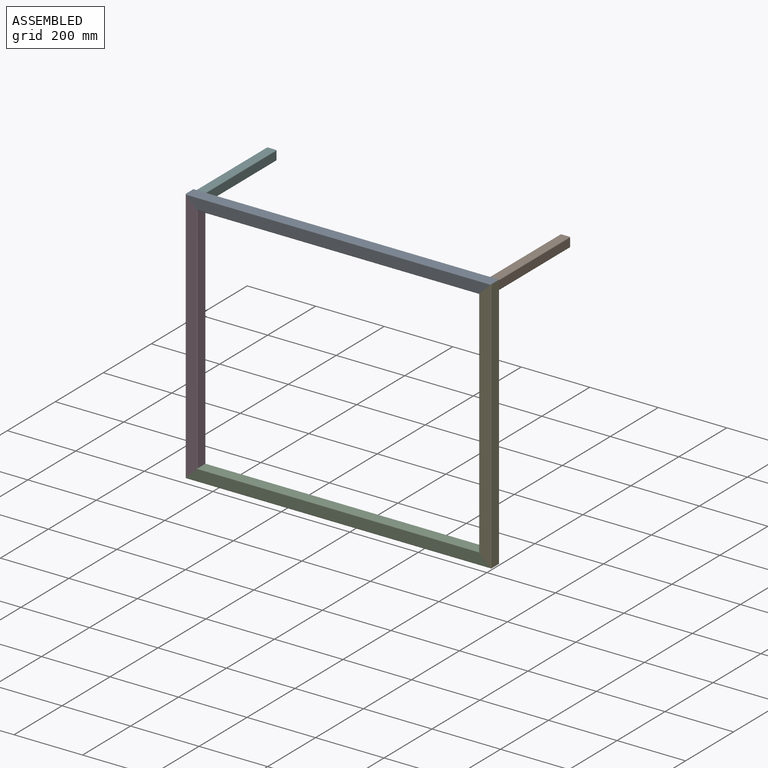
[diagram: assembled view]
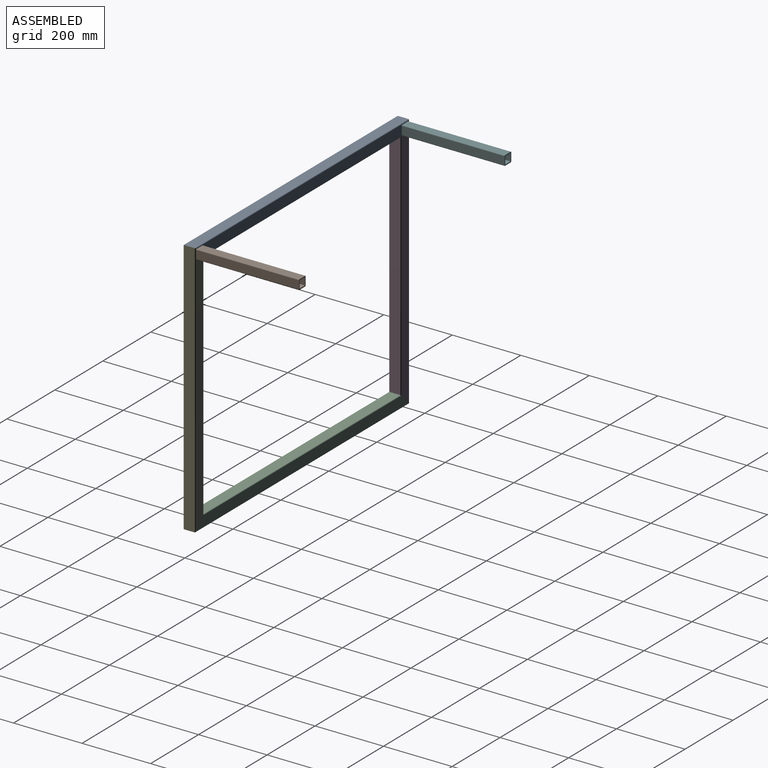
[diagram: assembled view, second angle]
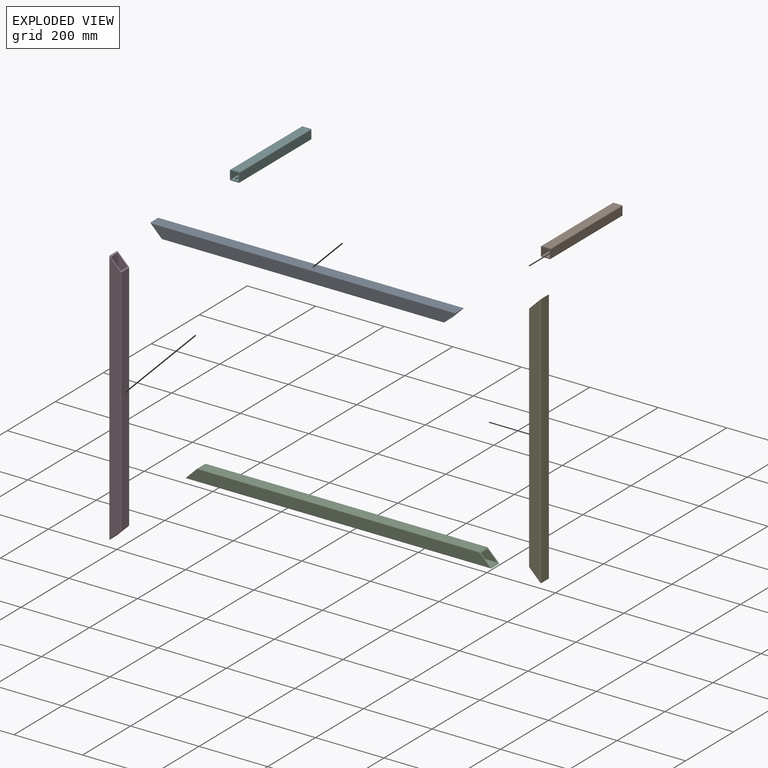
[diagram: exploded view]
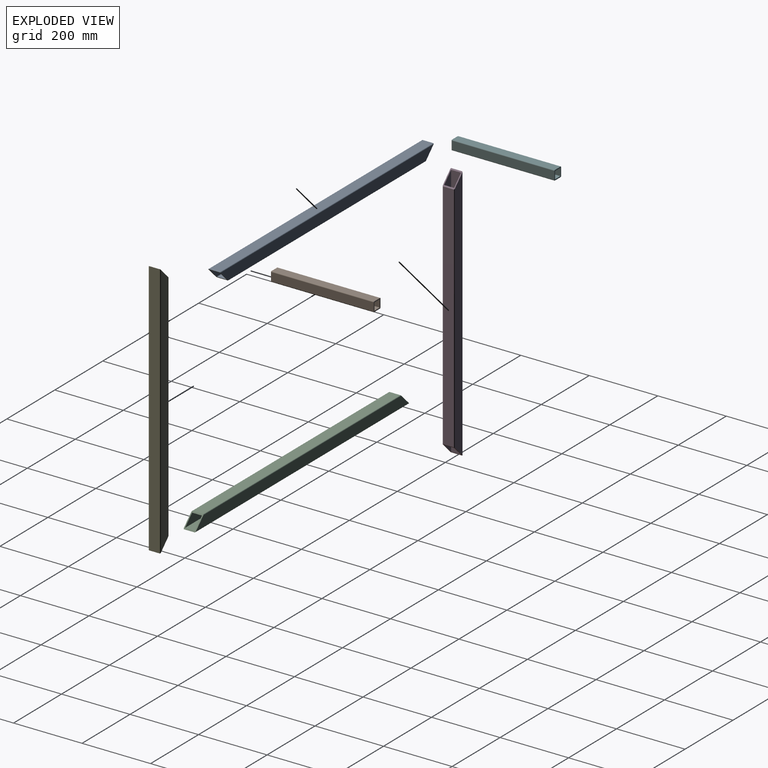
[diagram: exploded view, second angle]
ASSEMBLY  parts=6 mates=5
PART A: 14 faces, bbox 892x35x35 mm
  f0: plane 888x31mm, normal (0,-1,0), area 26567mm2, adj f8,f9,f12,f13
  f1: plane 822x31mm, normal (0,0,-1), area 25482mm2, adj f8,f9,f10,f13
  f2: plane 888x31mm, normal (0,1,0), area 26567mm2, adj f8,f9,f10,f11
  f3: plane 892x31mm, normal (0,0,1), area 27652mm2, adj f8,f9,f11,f12
  f4: plane 886x29mm, normal (0,1,0), area 24853mm2, adj f5,f7,f8,f9
  f5: plane 886x29mm, normal (0,0,-1), area 25694mm2, adj f4,f6,f8,f9
  f6: plane 886x29mm, normal (0,-1,0), area 24853mm2, adj f5,f7,f8,f9
  f7: plane 828x29mm, normal (0,0,1), area 24012mm2, adj f4,f6,f8,f9
  f8: plane 35x35mm, normal (0.71,0,-0.71), area 538.2mm2, adj f0,f1,f2,f3,f4,f5,f6,f7
  f9: plane 35x35mm, normal (-0.71,0,-0.71), area 538.2mm2, adj f0,f1,f2,f3,f4,f5,f6,f7
  f10: cylinder r=2mm len=826mm, axis (-1,0,0), area 2587mm2, adj f1,f2,f8,f9
  f11: cylinder r=2mm len=892mm, axis (1,0,0), area 2797.7mm2, adj f2,f3,f8,f9
  f12: cylinder r=2mm len=892mm, axis (-1,0,0), area 2797.7mm2, adj f0,f3,f8,f9
  f13: cylinder r=2mm len=826mm, axis (1,0,0), area 2587mm2, adj f0,f1,f8,f9
PART B: 17 faces, bbox 28x300x28 mm
  f0: plane 300x22mm, normal (0,0,-1), area 6600mm2, adj f1,f7,f8,f9
  f1: plane 300x22mm, normal (1,0,0), area 6600mm2, adj f0,f2,f8,f9
  f2: plane 300x22mm, normal (0,0,1), area 6449.2mm2, adj f1,f7,f8,f9,f14,f15,f16
  f3: plane 300x24mm, normal (-1,0,0), area 7200mm2, adj f8,f9,f10,f11
  f4: plane 300x24mm, normal (0,0,1), area 7200mm2, adj f8,f9,f11,f13
  f5: plane 300x24mm, normal (1,0,0), area 7200mm2, adj f8,f9,f12,f13
  f6: plane 300x24mm, normal (0,0,-1), area 7049.2mm2, adj f8,f9,f10,f12,f14,f15,f16
  f7: plane 300x22mm, normal (-1,0,0), area 6600mm2, adj f0,f2,f8,f9
  f8: plane 28x28mm, normal (0,1,0), area 296.6mm2, adj f0,f1,f2,f3,f4,f5,f6,f7
  f9: plane 28x28mm, normal (0,-1,0), area 296.6mm2, adj f0,f1,f2,f3,f4,f5,f6,f7
  f10: cylinder r=2mm len=300mm, axis (0,1,0), area 942.5mm2, adj f3,f6,f8,f9
  f11: cylinder r=2mm len=300mm, axis (0,-1,0), area 942.5mm2, adj f3,f4,f8,f9
  f12: cylinder r=2mm len=300mm, axis (0,-1,0), area 942.5mm2, adj f5,f6,f8,f9
  f13: cylinder r=2mm len=300mm, axis (0,1,0), area 942.5mm2, adj f4,f5,f8,f9
  f14: cylinder r=4mm len=8mm, axis (0,0,-1), area 75.4mm2, adj f2,f6
  f15: cylinder r=4mm len=8mm, axis (0,0,-1), area 75.4mm2, adj f2,f6
  f16: cylinder r=4mm len=8mm, axis (0,0,-1), area 75.4mm2, adj f2,f6
PART C: same geometry as A
PART D: 14 faces, bbox 35x35x750 mm
  f0: plane 746x31mm, normal (0,1,0), area 22165mm2, adj f8,f9,f10,f13
  f1: plane 680x31mm, normal (-1,0,0), area 21080mm2, adj f8,f9,f10,f11
  f2: plane 746x31mm, normal (0,-1,0), area 22165mm2, adj f8,f9,f11,f12
  f3: plane 686x29mm, normal (1,0,0), area 19894mm2, adj f4,f6,f8,f9
  f4: plane 744x29mm, normal (0,-1,0), area 20735mm2, adj f3,f5,f8,f9
  f5: plane 744x29mm, normal (-1,0,0), area 21576mm2, adj f4,f6,f8,f9
  f6: plane 744x29mm, normal (0,1,0), area 20735mm2, adj f3,f5,f8,f9
  f7: plane 750x31mm, normal (1,0,0), area 23250mm2, adj f8,f9,f12,f13
  f8: plane 35x35mm, normal (-0.71,0,0.71), area 538.2mm2, adj f0,f1,f2,f3,f4,f5,f6,f7
  f9: plane 35x35mm, normal (-0.71,0,-0.71), area 538.2mm2, adj f0,f1,f2,f3,f4,f5,f6,f7
  f10: cylinder r=2mm len=684mm, axis (0,0,-1), area 2140.8mm2, adj f0,f1,f8,f9
  f11: cylinder r=2mm len=684mm, axis (0,0,1), area 2140.8mm2, adj f1,f2,f8,f9
  f12: cylinder r=2mm len=750mm, axis (0,0,-1), area 2351.6mm2, adj f2,f7,f8,f9
  f13: cylinder r=2mm len=750mm, axis (0,0,1), area 2351.6mm2, adj f0,f7,f8,f9
PART E: same geometry as D
PART F: same geometry as B
PLACE A rot(axis=(0,0,1),180deg) t=(0,0,750)mm
PLACE B t=(1749,35,750)mm
PLACE C rot(axis=(1,0,0),180deg) t=(892,0,0)mm
PLACE D rot(axis=(0,0,1),180deg) t=(0,0,750)mm
PLACE E rot(axis=(1,0,0),180deg) t=(892,0,0)mm
PLACE F t=(892,35,750)mm
MATE fastened A.f2 <-> E.f0  axis (0,1,0) through (892,0,750)mm
MATE fastened D.f0 <-> C.f2  axis (0,1,0) through (0,0,0)mm
MATE fastened B.f9 <-> E.f2  axis (0,-1,0) through (874.5,35,732.5)mm
MATE fastened D.f8 <-> A.f8  axis (0.71,0,0.71) through (17.5,17.5,732.5)mm
MATE fastened F.f9 <-> A.f0  axis (0,-1,0) through (17.5,35,732.5)mm
